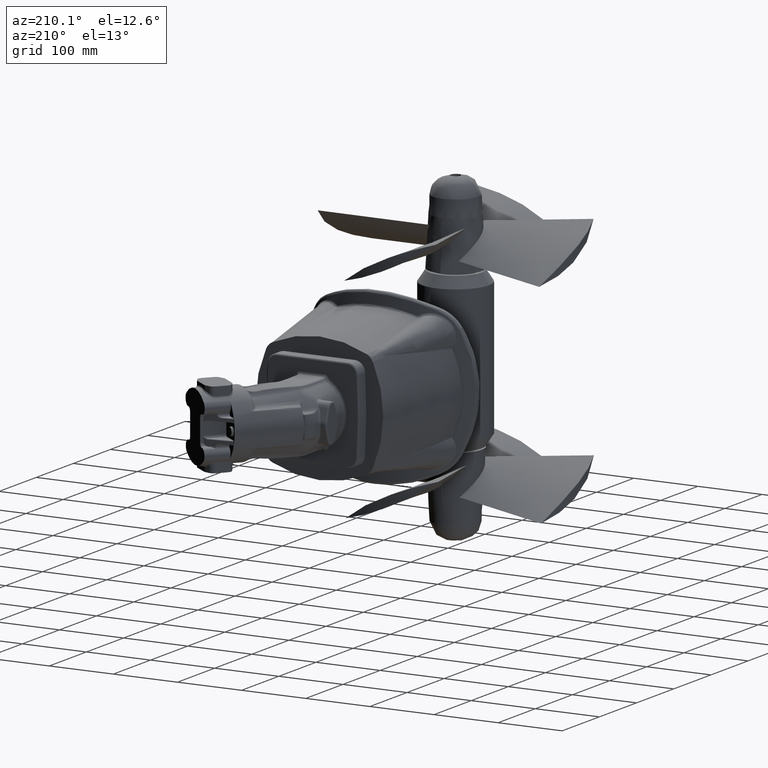
[diagram: clean part render]
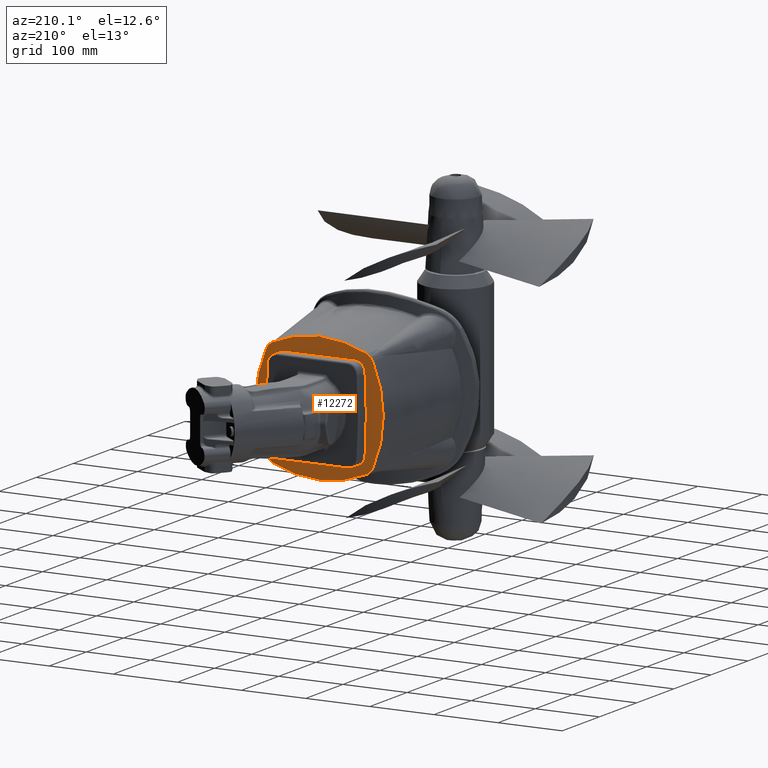
[diagram: same view with one face highlighted and labeled with its STEP entity id]
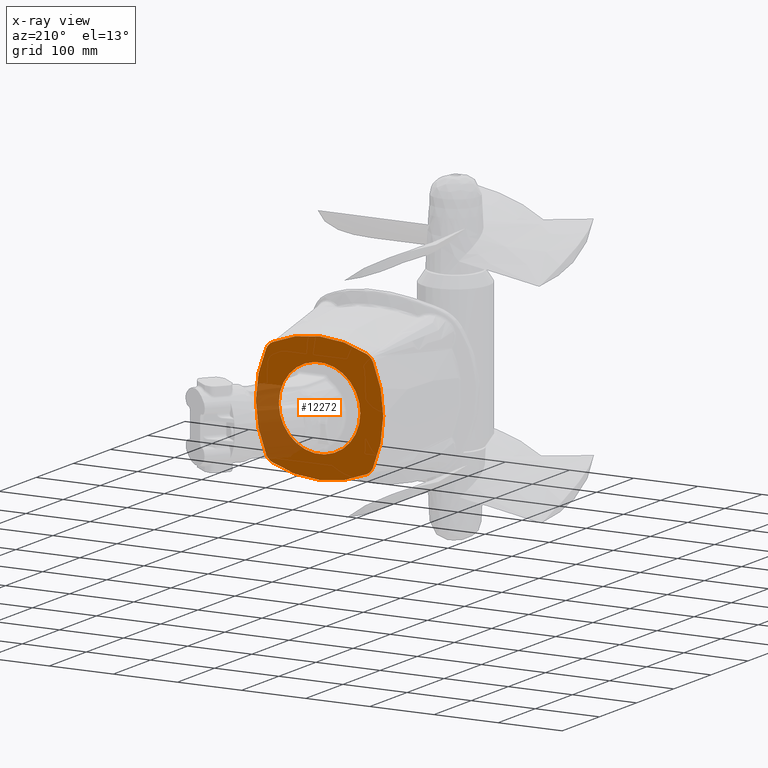
[diagram: x-ray of the same camera — body ghosted, the highlighted face saturated]
A machine part, auxiliary view. The second image highlights one B-rep face of the part: STEP entity #12272.
The next image is the same camera in x-ray: the body ghosted, the highlighted face saturated — about 20% of this face is hidden behind the body in this view.
In plain terms, the highlighted planar face has unit normal (-0, 1, -0).
Its self-contained STEP definition (entity closure, byte-faithful):
#544=ELLIPSE('',#13327,20.0866663595798,19.9999887412917);
#545=ELLIPSE('',#13329,20.0866663595776,19.9999887412904);
#546=ELLIPSE('',#13331,20.0866663595775,19.9999887412903);
#547=ELLIPSE('',#13333,20.0866663595798,19.9999887412917);
#1985=FACE_BOUND('',#3617,.T.);
#2815=FACE_OUTER_BOUND('',#3616,.T.);
#3616=EDGE_LOOP('',(#10146,#10147,#10148,#10149,#10150,#10151,#10152,#10153));
#3617=EDGE_LOOP('',(#10154));
#3815=CIRCLE('',#12445,63.5);
#4376=CIRCLE('',#13326,175.);
#4377=CIRCLE('',#13328,175.);
#4378=CIRCLE('',#13330,175.);
#4379=CIRCLE('',#13332,175.);
#4464=VERTEX_POINT('',#15937);
#5314=VERTEX_POINT('',#45297);
#5315=VERTEX_POINT('',#45298);
#5316=VERTEX_POINT('',#45300);
#5317=VERTEX_POINT('',#45302);
#5318=VERTEX_POINT('',#45304);
#5319=VERTEX_POINT('',#45306);
#5320=VERTEX_POINT('',#45308);
#5321=VERTEX_POINT('',#45310);
#5508=EDGE_CURVE('',#4464,#4464,#3815,.T.);
#6956=EDGE_CURVE('',#5314,#5315,#4376,.T.);
#6957=EDGE_CURVE('',#5316,#5314,#544,.T.);
#6958=EDGE_CURVE('',#5317,#5316,#4377,.T.);
#6959=EDGE_CURVE('',#5318,#5317,#545,.T.);
#6960=EDGE_CURVE('',#5319,#5318,#4378,.T.);
#6961=EDGE_CURVE('',#5320,#5319,#546,.T.);
#6962=EDGE_CURVE('',#5321,#5320,#4379,.T.);
#6963=EDGE_CURVE('',#5315,#5321,#547,.T.);
#10146=ORIENTED_EDGE('',*,*,#6956,.F.);
#10147=ORIENTED_EDGE('',*,*,#6957,.F.);
#10148=ORIENTED_EDGE('',*,*,#6958,.F.);
#10149=ORIENTED_EDGE('',*,*,#6959,.F.);
#10150=ORIENTED_EDGE('',*,*,#6960,.F.);
#10151=ORIENTED_EDGE('',*,*,#6961,.F.);
#10152=ORIENTED_EDGE('',*,*,#6962,.F.);
#10153=ORIENTED_EDGE('',*,*,#6963,.F.);
#10154=ORIENTED_EDGE('',*,*,#5508,.T.);
#10917=PLANE('',#13325);
#12272=ADVANCED_FACE('',(#2815,#1985),#10917,.T.);
#12445=AXIS2_PLACEMENT_3D('',#15938,#13507,#13508);
#13325=AXIS2_PLACEMENT_3D('',#45296,#15566,#15567);
#13326=AXIS2_PLACEMENT_3D('',#45299,#15568,#15569);
#13327=AXIS2_PLACEMENT_3D('',#45301,#15570,#15571);
#13328=AXIS2_PLACEMENT_3D('',#45303,#15572,#15573);
#13329=AXIS2_PLACEMENT_3D('',#45305,#15574,#15575);
#13330=AXIS2_PLACEMENT_3D('',#45307,#15576,#15577);
#13331=AXIS2_PLACEMENT_3D('',#45309,#15578,#15579);
#13332=AXIS2_PLACEMENT_3D('',#45311,#15580,#15581);
#13333=AXIS2_PLACEMENT_3D('',#45312,#15582,#15583);
#13507=DIRECTION('center_axis',(9.12362709659443E-17,-1.,7.70842583323927E-17));
#13508=DIRECTION('ref_axis',(-1.,5.58326441711462E-16,2.72956221307933E-18));
#15566=DIRECTION('center_axis',(-9.12362709659443E-17,1.,-7.70842583323927E-17));
#15567=DIRECTION('ref_axis',(0.,0.,1.));
#15568=DIRECTION('center_axis',(9.12362709659443E-17,-1.,7.70842583323927E-17));
#15569=DIRECTION('ref_axis',(-0.419821517911338,3.16592383390893E-17,0.907606684141661));
#15570=DIRECTION('center_axis',(9.12362709659443E-17,-1.,7.70842583323927E-17));
#15571=DIRECTION('ref_axis',(0.707106781186548,1.19020587679763E-16,0.707106781186547));
#15572=DIRECTION('center_axis',(9.12362709659443E-17,-1.,7.70842583323927E-17));
#15573=DIRECTION('ref_axis',(0.907606684141661,1.15168279705026E-16,0.419821517911338));
#15574=DIRECTION('center_axis',(9.12362709659443E-17,-1.,7.70842583323927E-17));
#15575=DIRECTION('ref_axis',(0.707106781186547,1.00069841006219E-17,-0.707106781186548));
#15576=DIRECTION('center_axis',(9.12362709659443E-17,-1.,7.70842583323927E-17));
#15577=DIRECTION('ref_axis',(0.419821517911338,-3.16592383390893E-17,-0.907606684141661));
#15578=DIRECTION('center_axis',(9.12362709659443E-17,-1.,7.70842583323927E-17));
#15579=DIRECTION('ref_axis',(0.707106781186548,1.19020587679763E-16,0.707106781186547));
#15580=DIRECTION('center_axis',(9.12362709659443E-17,-1.,7.70842583323927E-17));
#15581=DIRECTION('ref_axis',(-0.907606684141661,-1.15168279705026E-16,-0.419821517911338));
#15582=DIRECTION('center_axis',(9.12362709659443E-17,-1.,7.70842583323927E-17));
#15583=DIRECTION('ref_axis',(0.707106781186547,1.00069841006219E-17,-0.707106781186548));
#15937=CARTESIAN_POINT('',(-450.580233911989,869.57721263683,-3.11569073374659E-13));
#15938=CARTESIAN_POINT('Origin',(-514.080233911989,869.57721263683,-3.19172253348714E-13));
#45296=CARTESIAN_POINT('Origin',(-514.080233911989,869.57721263683,-2.8759140036286E-13));
#45297=CARTESIAN_POINT('',(-440.611468277173,869.57721263683,83.1873455627743));
#45298=CARTESIAN_POINT('',(-587.548999546805,869.57721263683,83.1873455627743));
#45299=CARTESIAN_POINT('Origin',(-514.080233911989,869.57721263683,-75.6438241627341));
#45300=CARTESIAN_POINT('',(-430.892888349214,869.57721263683,73.4687656348159));
#45301=CARTESIAN_POINT('Origin',(-449.090816583644,869.57721263683,64.9894173283441));
#45302=CARTESIAN_POINT('',(-430.892888349214,869.57721263683,-73.4687656348165));
#45303=CARTESIAN_POINT('Origin',(-589.724058074723,869.57721263683,-2.48435022372422E-13));
#45304=CARTESIAN_POINT('',(-440.611468277173,869.57721263683,-83.1873455627748));
#45305=CARTESIAN_POINT('Origin',(-449.090816583643,869.57721263683,-64.9894173283463));
#45306=CARTESIAN_POINT('',(-587.548999546805,869.57721263683,-83.1873455627748));
#45307=CARTESIAN_POINT('Origin',(-514.080233911989,869.57721263683,75.6438241627335));
#45308=CARTESIAN_POINT('',(-597.267579474763,869.57721263683,-73.4687656348164));
#45309=CARTESIAN_POINT('Origin',(-579.069651240335,869.57721263683,-64.9894173283464));
#45310=CARTESIAN_POINT('',(-597.267579474763,869.57721263683,73.468765634816));
#45311=CARTESIAN_POINT('Origin',(-438.436409749255,869.57721263683,-3.00102425762295E-13));
#45312=CARTESIAN_POINT('Origin',(-579.069651240333,869.57721263683,64.9894173283442));